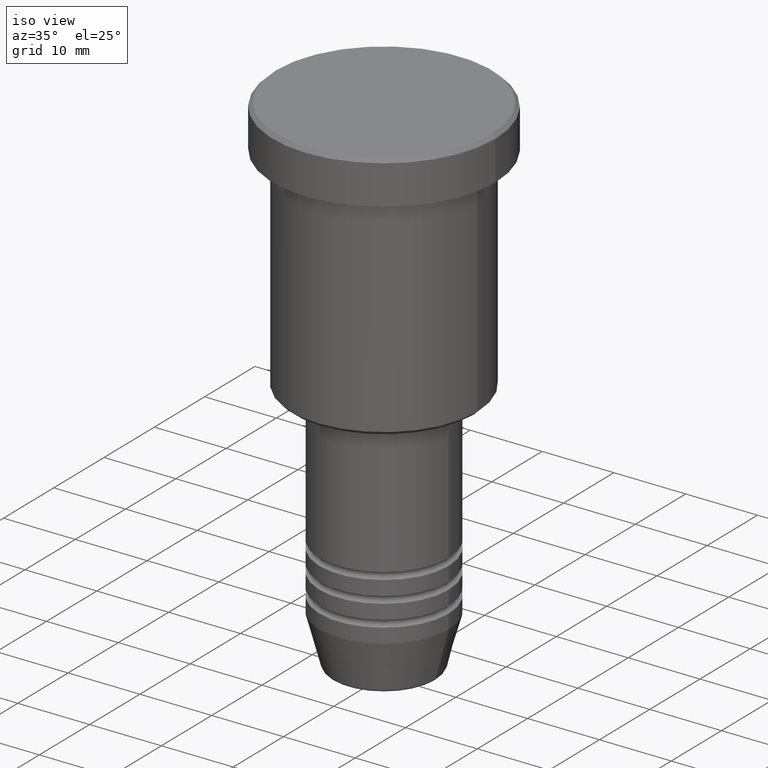
[diagram: clean part render]
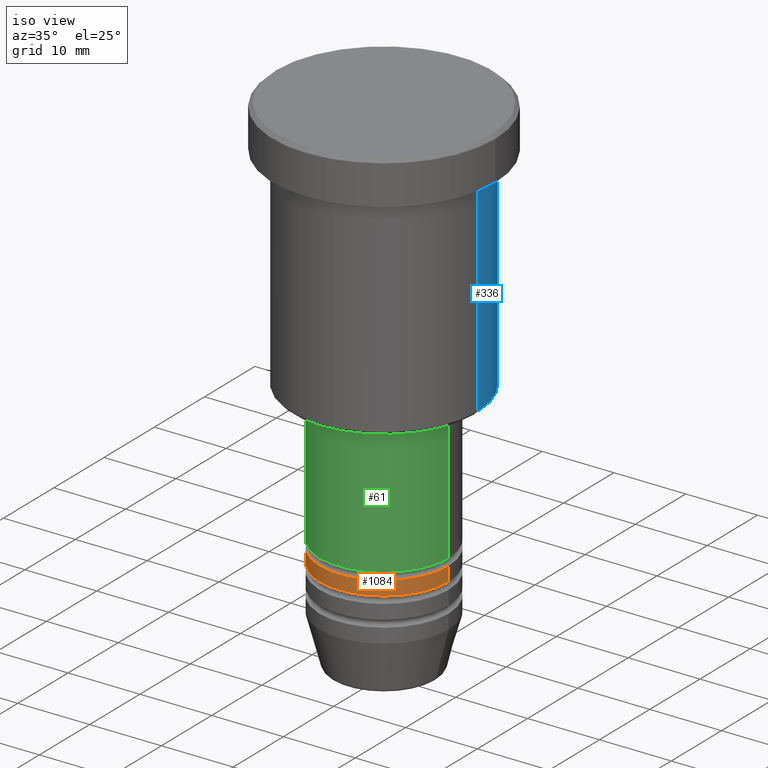
[diagram: same view with three faces highlighted in distinct colors, each labeled with its STEP entity id]
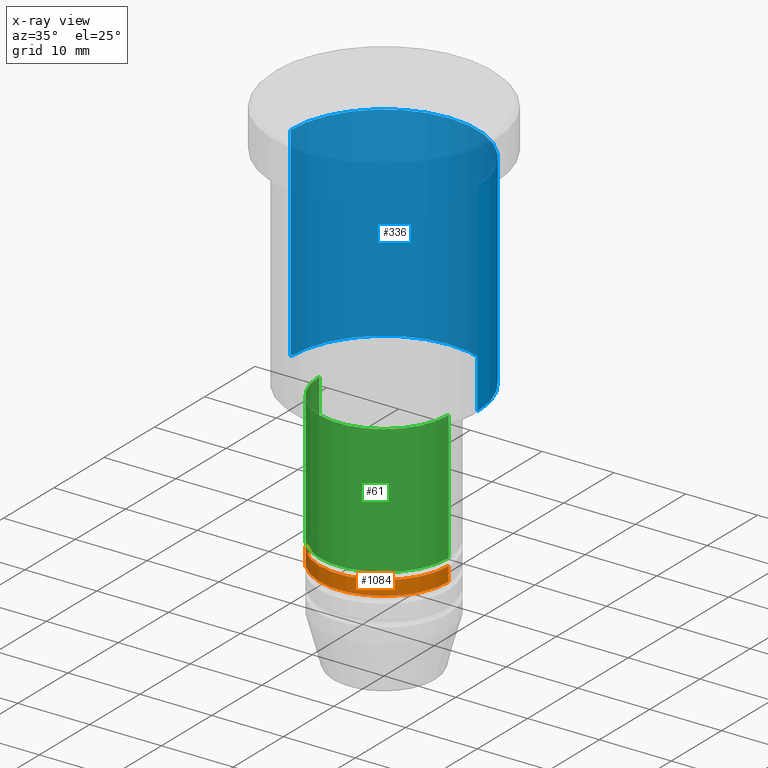
[diagram: x-ray of the same camera — body ghosted, the three highlighted faces saturated]
A machine part, iso view with three faces highlighted in distinct colors.
The next image is the same camera in x-ray (body ghosted, the three faces saturated) — at least one of them is partly hidden behind the body in this view.
Their STEP definitions:

[orange] entity #1084 — the highlighted cylindrical surface (partial cylindrical patch) has radius 9 mm, axis along (-0, -0, 1).
#74 = DIRECTION ( 'NONE',  ( -0.000000000000000000, -0.000000000000000000, 1.000000000000000000 ) ) ;
#76 = DIRECTION ( 'NONE',  ( -0.000000000000000000, -0.000000000000000000, 1.000000000000000000 ) ) ;
#101 = DIRECTION ( 'NONE',  ( -0.000000000000000000, -0.000000000000000000, 1.000000000000000000 ) ) ;
#141 = ORIENTED_EDGE ( 'NONE', *, *, #1058, .T. ) ;
#148 = ORIENTED_EDGE ( 'NONE', *, *, #449, .T. ) ;
#174 = CARTESIAN_POINT ( 'NONE',  ( -9.000000000000000000, 1.102182119232617714E-15, 0.000000000000000000 ) ) ;
#244 = AXIS2_PLACEMENT_3D ( 'NONE', #599, #1162, #314 ) ;
#286 = VERTEX_POINT ( 'NONE', #1072 ) ;
#288 = DIRECTION ( 'NONE',  ( 1.000000000000000000, 0.000000000000000000, 0.000000000000000000 ) ) ;
#314 = DIRECTION ( 'NONE',  ( 1.000000000000000000, 0.000000000000000000, 0.000000000000000000 ) ) ;
#333 = CARTESIAN_POINT ( 'NONE',  ( 9.000000000000000000, 0.000000000000000000, -55.99999999999997868 ) ) ;
#392 = EDGE_CURVE ( 'NONE', #535, #596, #531, .T. ) ;
#432 = CARTESIAN_POINT ( 'NONE',  ( 0.000000000000000000, 0.000000000000000000, 0.000000000000000000 ) ) ;
#449 = EDGE_CURVE ( 'NONE', #286, #507, #1160, .T. ) ;
#498 = CARTESIAN_POINT ( 'NONE',  ( 0.000000000000000000, 0.000000000000000000, -55.99999999999997868 ) ) ;
#507 = VERTEX_POINT ( 'NONE', #906 ) ;
#509 = FACE_OUTER_BOUND ( 'NONE', #1135, .T. ) ;
#525 = LINE ( 'NONE', #903, #681 ) ;
#531 = CIRCLE ( 'NONE', #794, 9.000000000000000000 ) ;
#535 = VERTEX_POINT ( 'NONE', #1069 ) ;
#588 = EDGE_CURVE ( 'NONE', #286, #535, #997, .T. ) ;
#596 = VERTEX_POINT ( 'NONE', #333 ) ;
#599 = CARTESIAN_POINT ( 'NONE',  ( 0.000000000000000000, 0.000000000000000000, -57.99999999999997868 ) ) ;
#611 = DIRECTION ( 'NONE',  ( 1.000000000000000000, 0.000000000000000000, 0.000000000000000000 ) ) ;
#681 = VECTOR ( 'NONE', #74, 1000.000000000000000 ) ;
#794 = AXIS2_PLACEMENT_3D ( 'NONE', #498, #1161, #611 ) ;
#804 = CYLINDRICAL_SURFACE ( 'NONE', #836, 9.000000000000000000 ) ;
#836 = AXIS2_PLACEMENT_3D ( 'NONE', #432, #101, #288 ) ;
#903 = CARTESIAN_POINT ( 'NONE',  ( 9.000000000000000000, 0.000000000000000000, 0.000000000000000000 ) ) ;
#906 = CARTESIAN_POINT ( 'NONE',  ( 9.000000000000000000, 0.000000000000000000, -57.99999999999997868 ) ) ;
#939 = ORIENTED_EDGE ( 'NONE', *, *, #588, .F. ) ;
#997 = LINE ( 'NONE', #174, #1079 ) ;
#999 = ORIENTED_EDGE ( 'NONE', *, *, #392, .F. ) ;
#1058 = EDGE_CURVE ( 'NONE', #507, #596, #525, .T. ) ;
#1069 = CARTESIAN_POINT ( 'NONE',  ( -9.000000000000000000, 1.102182119232617714E-15, -55.99999999999997868 ) ) ;
#1072 = CARTESIAN_POINT ( 'NONE',  ( -9.000000000000000000, 1.102182119232617714E-15, -57.99999999999997868 ) ) ;
#1079 = VECTOR ( 'NONE', #76, 1000.000000000000000 ) ;
#1084 = ADVANCED_FACE ( 'NONE', ( #509 ), #804, .T. ) ;
#1135 = EDGE_LOOP ( 'NONE', ( #939, #148, #141, #999 ) ) ;
#1160 = CIRCLE ( 'NONE', #244, 9.000000000000000000 ) ;
#1161 = DIRECTION ( 'NONE',  ( -0.000000000000000000, -0.000000000000000000, 1.000000000000000000 ) ) ;
#1162 = DIRECTION ( 'NONE',  ( -0.000000000000000000, -0.000000000000000000, 1.000000000000000000 ) ) ;

[blue] entity #336 — the highlighted cylindrical surface (partial cylindrical patch) has radius 13 mm, axis along (-0, -0, 1).
#62 = ORIENTED_EDGE ( 'NONE', *, *, #176, .T. ) ;
#85 = CIRCLE ( 'NONE', #1007, 13.00000000000000000 ) ;
#166 = ORIENTED_EDGE ( 'NONE', *, *, #785, .F. ) ;
#176 = EDGE_CURVE ( 'NONE', #1144, #440, #85, .T. ) ;
#196 = CARTESIAN_POINT ( 'NONE',  ( 0.000000000000000000, 0.000000000000000000, -6.999999999999995559 ) ) ;
#215 = DIRECTION ( 'NONE',  ( -0.000000000000000000, -0.000000000000000000, 1.000000000000000000 ) ) ;
#243 = CARTESIAN_POINT ( 'NONE',  ( 13.00000000000000000, 0.000000000000000000, 0.000000000000000000 ) ) ;
#266 = CARTESIAN_POINT ( 'NONE',  ( -13.00000000000000000, 1.592040838891559095E-15, -6.999999999999995559 ) ) ;
#294 = LINE ( 'NONE', #754, #835 ) ;
#336 = ADVANCED_FACE ( 'NONE', ( #552 ), #944, .T. ) ;
#363 = AXIS2_PLACEMENT_3D ( 'NONE', #1113, #931, #462 ) ;
#367 = DIRECTION ( 'NONE',  ( 1.000000000000000000, 0.000000000000000000, 0.000000000000000000 ) ) ;
#395 = DIRECTION ( 'NONE',  ( -1.000000000000000000, 0.000000000000000000, 0.000000000000000000 ) ) ;
#396 = DIRECTION ( 'NONE',  ( -0.000000000000000000, -0.000000000000000000, 1.000000000000000000 ) ) ;
#401 = LINE ( 'NONE', #243, #456 ) ;
#436 = CARTESIAN_POINT ( 'NONE',  ( 0.000000000000000000, 0.000000000000000000, -35.50000000000000711 ) ) ;
#440 = VERTEX_POINT ( 'NONE', #964 ) ;
#456 = VECTOR ( 'NONE', #396, 1000.000000000000000 ) ;
#462 = DIRECTION ( 'NONE',  ( 1.000000000000000000, 0.000000000000000000, 0.000000000000000000 ) ) ;
#469 = EDGE_CURVE ( 'NONE', #1089, #517, #905, .T. ) ;
#517 = VERTEX_POINT ( 'NONE', #266 ) ;
#551 = EDGE_LOOP ( 'NONE', ( #62, #688, #656, #166 ) ) ;
#552 = FACE_OUTER_BOUND ( 'NONE', #551, .T. ) ;
#580 = DIRECTION ( 'NONE',  ( -0.000000000000000000, -0.000000000000000000, 1.000000000000000000 ) ) ;
#656 = ORIENTED_EDGE ( 'NONE', *, *, #469, .F. ) ;
#688 = ORIENTED_EDGE ( 'NONE', *, *, #1112, .T. ) ;
#754 = CARTESIAN_POINT ( 'NONE',  ( -13.00000000000000000, 1.592040838891559095E-15, 0.000000000000000000 ) ) ;
#785 = EDGE_CURVE ( 'NONE', #1144, #1089, #401, .T. ) ;
#835 = VECTOR ( 'NONE', #215, 1000.000000000000000 ) ;
#878 = DIRECTION ( 'NONE',  ( -0.000000000000000000, -0.000000000000000000, 1.000000000000000000 ) ) ;
#905 = CIRCLE ( 'NONE', #1142, 13.00000000000000000 ) ;
#926 = CARTESIAN_POINT ( 'NONE',  ( 13.00000000000000000, 0.000000000000000000, -6.999999999999995559 ) ) ;
#931 = DIRECTION ( 'NONE',  ( -0.000000000000000000, -0.000000000000000000, 1.000000000000000000 ) ) ;
#944 = CYLINDRICAL_SURFACE ( 'NONE', #363, 13.00000000000000000 ) ;
#964 = CARTESIAN_POINT ( 'NONE',  ( -13.00000000000000000, 1.592040838891559095E-15, -35.50000000000000711 ) ) ;
#1006 = CARTESIAN_POINT ( 'NONE',  ( 13.00000000000000000, 0.000000000000000000, -35.50000000000000711 ) ) ;
#1007 = AXIS2_PLACEMENT_3D ( 'NONE', #436, #878, #395 ) ;
#1089 = VERTEX_POINT ( 'NONE', #926 ) ;
#1112 = EDGE_CURVE ( 'NONE', #440, #517, #294, .T. ) ;
#1113 = CARTESIAN_POINT ( 'NONE',  ( 0.000000000000000000, 0.000000000000000000, 0.000000000000000000 ) ) ;
#1142 = AXIS2_PLACEMENT_3D ( 'NONE', #196, #580, #367 ) ;
#1144 = VERTEX_POINT ( 'NONE', #1006 ) ;

[green] entity #61 — the highlighted cylindrical surface (partial cylindrical patch) has radius 9 mm, axis along (-0, -0, 1).
#7 = CARTESIAN_POINT ( 'NONE',  ( -9.000000000000000000, 1.102182119232617714E-15, -37.00000000000000000 ) ) ;
#9 = DIRECTION ( 'NONE',  ( -0.000000000000000000, -0.000000000000000000, 1.000000000000000000 ) ) ;
#57 = ORIENTED_EDGE ( 'NONE', *, *, #1138, .F. ) ;
#61 = ADVANCED_FACE ( 'NONE', ( #907 ), #93, .T. ) ;
#78 = VERTEX_POINT ( 'NONE', #7 ) ;
#93 = CYLINDRICAL_SURFACE ( 'NONE', #492, 9.000000000000000000 ) ;
#94 = ORIENTED_EDGE ( 'NONE', *, *, #637, .T. ) ;
#95 = CARTESIAN_POINT ( 'NONE',  ( 0.000000000000000000, 0.000000000000000000, -37.00000000000000000 ) ) ;
#188 = CARTESIAN_POINT ( 'NONE',  ( 0.000000000000000000, 0.000000000000000000, 0.000000000000000000 ) ) ;
#247 = VERTEX_POINT ( 'NONE', #373 ) ;
#348 = DIRECTION ( 'NONE',  ( 1.000000000000000000, 0.000000000000000000, 0.000000000000000000 ) ) ;
#373 = CARTESIAN_POINT ( 'NONE',  ( -9.000000000000000000, 1.102182119232617714E-15, -54.99999999999997868 ) ) ;
#415 = CARTESIAN_POINT ( 'NONE',  ( 0.000000000000000000, 0.000000000000000000, -54.99999999999997868 ) ) ;
#425 = VERTEX_POINT ( 'NONE', #715 ) ;
#450 = EDGE_LOOP ( 'NONE', ( #781, #482, #94, #57 ) ) ;
#468 = DIRECTION ( 'NONE',  ( 1.000000000000000000, 0.000000000000000000, 0.000000000000000000 ) ) ;
#482 = ORIENTED_EDGE ( 'NONE', *, *, #957, .T. ) ;
#492 = AXIS2_PLACEMENT_3D ( 'NONE', #188, #541, #817 ) ;
#541 = DIRECTION ( 'NONE',  ( -0.000000000000000000, -0.000000000000000000, 1.000000000000000000 ) ) ;
#575 = AXIS2_PLACEMENT_3D ( 'NONE', #415, #1156, #348 ) ;
#626 = LINE ( 'NONE', #1004, #745 ) ;
#637 = EDGE_CURVE ( 'NONE', #691, #425, #626, .T. ) ;
#661 = CARTESIAN_POINT ( 'NONE',  ( 9.000000000000000000, 0.000000000000000000, -54.99999999999997868 ) ) ;
#691 = VERTEX_POINT ( 'NONE', #661 ) ;
#715 = CARTESIAN_POINT ( 'NONE',  ( 9.000000000000000000, 0.000000000000000000, -37.00000000000000000 ) ) ;
#745 = VECTOR ( 'NONE', #1014, 1000.000000000000000 ) ;
#756 = LINE ( 'NONE', #1116, #795 ) ;
#770 = EDGE_CURVE ( 'NONE', #247, #78, #756, .T. ) ;
#781 = ORIENTED_EDGE ( 'NONE', *, *, #770, .F. ) ;
#795 = VECTOR ( 'NONE', #1111, 1000.000000000000000 ) ;
#817 = DIRECTION ( 'NONE',  ( 1.000000000000000000, 0.000000000000000000, 0.000000000000000000 ) ) ;
#876 = AXIS2_PLACEMENT_3D ( 'NONE', #95, #9, #468 ) ;
#907 = FACE_OUTER_BOUND ( 'NONE', #450, .T. ) ;
#957 = EDGE_CURVE ( 'NONE', #247, #691, #1102, .T. ) ;
#1004 = CARTESIAN_POINT ( 'NONE',  ( 9.000000000000000000, 0.000000000000000000, 0.000000000000000000 ) ) ;
#1014 = DIRECTION ( 'NONE',  ( -0.000000000000000000, -0.000000000000000000, 1.000000000000000000 ) ) ;
#1102 = CIRCLE ( 'NONE', #575, 9.000000000000000000 ) ;
#1111 = DIRECTION ( 'NONE',  ( -0.000000000000000000, -0.000000000000000000, 1.000000000000000000 ) ) ;
#1116 = CARTESIAN_POINT ( 'NONE',  ( -9.000000000000000000, 1.102182119232617714E-15, 0.000000000000000000 ) ) ;
#1138 = EDGE_CURVE ( 'NONE', #78, #425, #1163, .T. ) ;
#1156 = DIRECTION ( 'NONE',  ( -0.000000000000000000, -0.000000000000000000, 1.000000000000000000 ) ) ;
#1163 = CIRCLE ( 'NONE', #876, 9.000000000000000000 ) ;